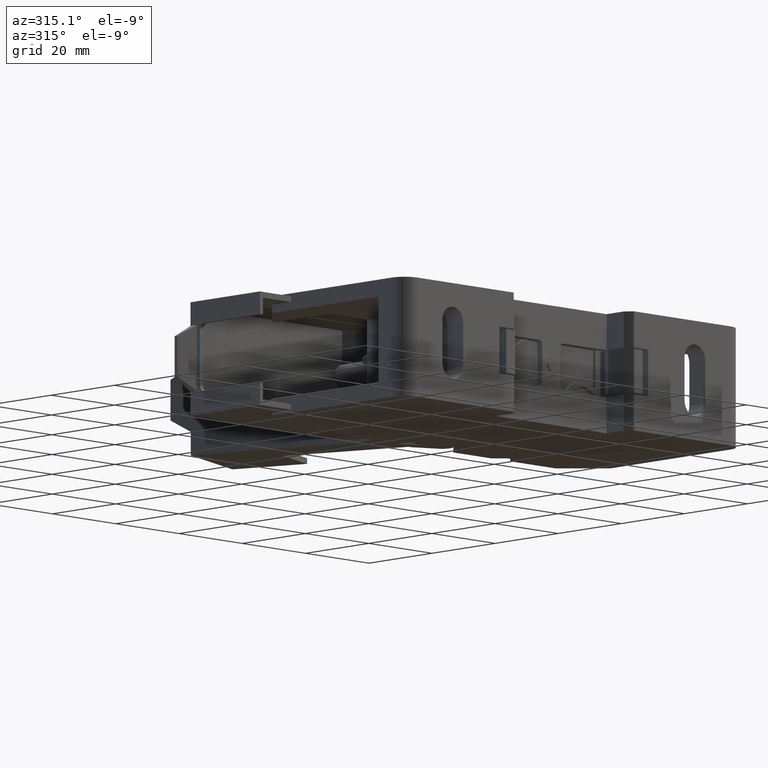
[diagram: clean part render]
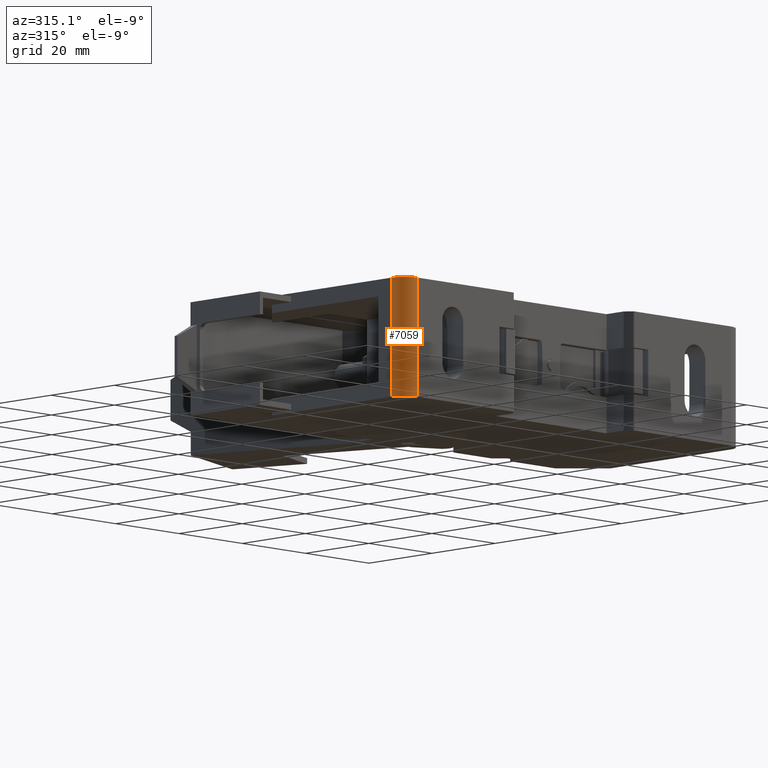
[diagram: same view with one face highlighted and labeled with its STEP entity id]
A machine part, auxiliary view. The second image highlights one B-rep face of the part: STEP entity #7059.
In plain terms, the highlighted cylindrical surface (edge-blend (fillet) strip) has radius 4 mm, axis along (0, -0, 1).
Its self-contained STEP definition (entity closure, byte-faithful):
#2655 = CIRCLE ( 'NONE', #2694, 4.000000000000000000 ) ;
#2685 = VECTOR ( 'NONE', #8385, 1000.000000000000000 ) ;
#2694 = AXIS2_PLACEMENT_3D ( 'NONE', #8422, #8391, #8398 ) ;
#2896 = AXIS2_PLACEMENT_3D ( 'NONE', #6008, #6009, #6002 ) ;
#4874 = CARTESIAN_POINT ( 'NONE',  ( -53.50000000000000700, -21.30000000000007500, 26.99999999999905100 ) ) ;
#6002 = DIRECTION ( 'NONE',  ( 0.0000000000000000000, -1.000000000000000000, -3.469446951953614200E-015 ) ) ;
#6005 = FACE_OUTER_BOUND ( 'NONE', #11210, .T. ) ;
#6007 = CYLINDRICAL_SURFACE ( 'NONE', #2896, 4.000000000000000000 ) ;
#6008 = CARTESIAN_POINT ( 'NONE',  ( -49.50000000000000000, -21.30000000000000100, 2.999999999999849900 ) ) ;
#6009 = DIRECTION ( 'NONE',  ( 0.0000000000000000000, -3.469446951953615000E-015, 1.000000000000000000 ) ) ;
#7059 = ADVANCED_FACE ( 'NONE', ( #6005 ), #6007, .T. ) ;
#8258 = CARTESIAN_POINT ( 'NONE',  ( -49.50000000000000000, -25.30000000000006500, 26.99999999999903000 ) ) ;
#8301 = CARTESIAN_POINT ( 'NONE',  ( -49.50000000000000000, -25.29999999999999000, -1.344410693882025700E-014 ) ) ;
#8360 = LINE ( 'NONE', #8384, #2685 ) ;
#8384 = CARTESIAN_POINT ( 'NONE',  ( -53.50000000000000700, -21.29999999999999000, 2.999999999999849900 ) ) ;
#8385 = DIRECTION ( 'NONE',  ( -0.0000000000000000000, 3.469446951953615000E-015, -1.000000000000000000 ) ) ;
#8391 = DIRECTION ( 'NONE',  ( 0.0000000000000000000, -3.469446951953615000E-015, 1.000000000000000000 ) ) ;
#8398 = DIRECTION ( 'NONE',  ( 0.0000000000000000000, -1.000000000000000000, -3.469446951953614200E-015 ) ) ;
#8422 = CARTESIAN_POINT ( 'NONE',  ( -49.50000000000000000, -21.30000000000008200, 26.99999999999908700 ) ) ;
#9540 = CARTESIAN_POINT ( 'NONE',  ( -49.50000000000000000, -25.30000000000000100, 2.999999999999836100 ) ) ;
#9605 = LINE ( 'NONE', #9540, #14650 ) ;
#9613 = DIRECTION ( 'NONE',  ( 0.0000000000000000000, -3.469446951953615000E-015, 1.000000000000000000 ) ) ;
#9855 = CARTESIAN_POINT ( 'NONE',  ( -49.50000000000000000, -21.29999999999999000, 0.0000000000000000000 ) ) ;
#9868 = DIRECTION ( 'NONE',  ( 0.0000000000000000000, -1.000000000000000000, -3.469446951953615000E-015 ) ) ;
#9887 = DIRECTION ( 'NONE',  ( 0.0000000000000000000, -3.469446951953615000E-015, 1.000000000000000000 ) ) ;
#10863 = ORIENTED_EDGE ( 'NONE', *, *, #15080, .T. ) ;
#10885 = ORIENTED_EDGE ( 'NONE', *, *, #14826, .T. ) ;
#10898 = ORIENTED_EDGE ( 'NONE', *, *, #15037, .T. ) ;
#10906 = ORIENTED_EDGE ( 'NONE', *, *, #14830, .F. ) ;
#11210 = EDGE_LOOP ( 'NONE', ( #10863, #10898, #10906, #10885 ) ) ;
#12089 = VERTEX_POINT ( 'NONE', #14066 ) ;
#13273 = VERTEX_POINT ( 'NONE', #4874 ) ;
#13319 = VERTEX_POINT ( 'NONE', #8258 ) ;
#13340 = VERTEX_POINT ( 'NONE', #8301 ) ;
#14066 = CARTESIAN_POINT ( 'NONE',  ( -53.50000000000000700, -21.29999999999998600, 0.0000000000000000000 ) ) ;
#14650 = VECTOR ( 'NONE', #9613, 1000.000000000000000 ) ;
#14677 = AXIS2_PLACEMENT_3D ( 'NONE', #9855, #9887, #9868 ) ;
#14706 = CIRCLE ( 'NONE', #14677, 4.000000000000000000 ) ;
#14826 = EDGE_CURVE ( 'NONE', #13273, #12089, #8360, .T. ) ;
#14830 = EDGE_CURVE ( 'NONE', #13273, #13319, #2655, .T. ) ;
#15037 = EDGE_CURVE ( 'NONE', #13340, #13319, #9605, .T. ) ;
#15080 = EDGE_CURVE ( 'NONE', #12089, #13340, #14706, .T. ) ;